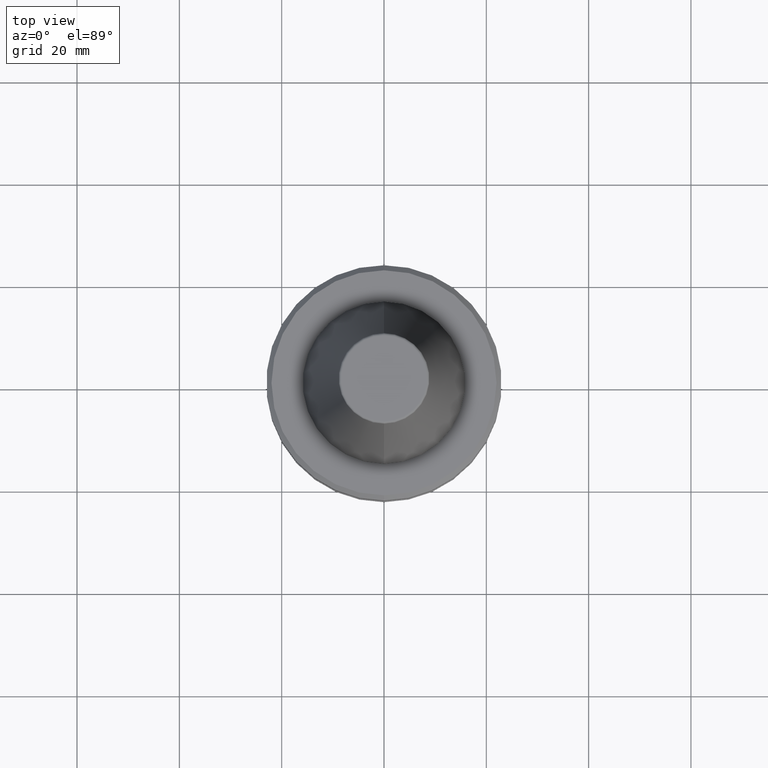
[diagram: clean part render]
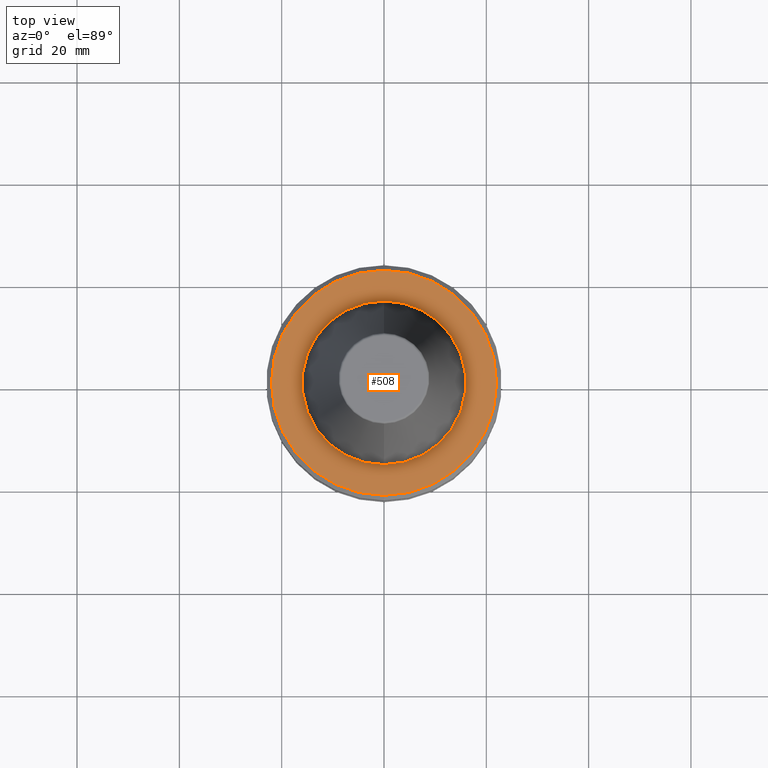
[diagram: same view with one face highlighted and labeled with its STEP entity id]
A machine part, top view. The second image highlights one B-rep face of the part: STEP entity #508.
In plain terms, the highlighted planar face has unit normal (0, -0, -1).
Its self-contained STEP definition (entity closure, byte-faithful):
#12 = ORIENTED_EDGE ( 'NONE', *, *, #1470, .T. ) ;
#22 = EDGE_CURVE ( 'NONE', #291, #528, #199, .T. ) ;
#27 = EDGE_LOOP ( 'NONE', ( #1740, #12 ) ) ;
#43 = FACE_OUTER_BOUND ( 'NONE', #27, .T. ) ;
#55 = AXIS2_PLACEMENT_3D ( 'NONE', #159, #80, #1286 ) ;
#59 = AXIS2_PLACEMENT_3D ( 'NONE', #1182, #891, #674 ) ;
#80 = DIRECTION ( 'NONE',  ( -0.0000000000000000000, 1.249865351798584200E-014, 1.000000000000000000 ) ) ;
#116 = CIRCLE ( 'NONE', #59, 22.00000000000133900 ) ;
#159 = CARTESIAN_POINT ( 'NONE',  ( 0.0000000000000000000, -1.540132287910319500E-012, -2.000000000000251400 ) ) ;
#199 = CIRCLE ( 'NONE', #55, 16.00000000000177600 ) ;
#258 = ORIENTED_EDGE ( 'NONE', *, *, #22, .F. ) ;
#287 = CARTESIAN_POINT ( 'NONE',  ( 0.0000000000000000000, 21.99999999999979700, -2.000000000000443200 ) ) ;
#291 = VERTEX_POINT ( 'NONE', #893 ) ;
#337 = AXIS2_PLACEMENT_3D ( 'NONE', #1016, #641, #1833 ) ;
#436 = VERTEX_POINT ( 'NONE', #1398 ) ;
#451 = CARTESIAN_POINT ( 'NONE',  ( 0.0000000000000000000, -16.00000000000347800, -2.000000000000162500 ) ) ;
#508 = ADVANCED_FACE ( 'NONE', ( #1587, #43 ), #1730, .F. ) ;
#528 = VERTEX_POINT ( 'NONE', #451 ) ;
#596 = ORIENTED_EDGE ( 'NONE', *, *, #1214, .F. ) ;
#641 = DIRECTION ( 'NONE',  ( 0.0000000000000000000, -1.249865351798584200E-014, -1.000000000000000000 ) ) ;
#674 = DIRECTION ( 'NONE',  ( 0.0000000000000000000, -1.000000000000000000, 1.249789413374123500E-014 ) ) ;
#849 = EDGE_CURVE ( 'NONE', #1167, #436, #1583, .T. ) ;
#884 = CARTESIAN_POINT ( 'NONE',  ( 0.0000000000000000000, -1.540132287910318500E-012, -2.000000000000168300 ) ) ;
#891 = DIRECTION ( 'NONE',  ( -0.0000000000000000000, 1.249865351798584200E-014, 1.000000000000000000 ) ) ;
#893 = CARTESIAN_POINT ( 'NONE',  ( 1.959434878636002600E-015, 16.00000000000040100, -2.000000000000562700 ) ) ;
#1000 = DIRECTION ( 'NONE',  ( -0.0000000000000000000, 1.249865351798584200E-014, 1.000000000000000000 ) ) ;
#1009 = DIRECTION ( 'NONE',  ( 0.0000000000000000000, -1.000000000000000000, 1.249789413374123500E-014 ) ) ;
#1016 = CARTESIAN_POINT ( 'NONE',  ( 0.0000000000000000000, 2.968110455490540000E-027, -2.000000000000208300 ) ) ;
#1167 = VERTEX_POINT ( 'NONE', #287 ) ;
#1182 = CARTESIAN_POINT ( 'NONE',  ( 0.0000000000000000000, -1.540132287910318500E-012, -2.000000000000168300 ) ) ;
#1214 = EDGE_CURVE ( 'NONE', #528, #291, #1249, .T. ) ;
#1249 = CIRCLE ( 'NONE', #1700, 16.00000000000177600 ) ;
#1286 = DIRECTION ( 'NONE',  ( 0.0000000000000000000, -1.000000000000000000, 1.249543003789405200E-014 ) ) ;
#1333 = DIRECTION ( 'NONE',  ( -0.0000000000000000000, 1.249865351798584200E-014, 1.000000000000000000 ) ) ;
#1398 = CARTESIAN_POINT ( 'NONE',  ( 2.755455298081709600E-015, -22.00000000000287800, -1.999999999999893400 ) ) ;
#1431 = AXIS2_PLACEMENT_3D ( 'NONE', #884, #1333, #1009 ) ;
#1470 = EDGE_CURVE ( 'NONE', #436, #1167, #116, .T. ) ;
#1583 = CIRCLE ( 'NONE', #1431, 22.00000000000133900 ) ;
#1587 = FACE_BOUND ( 'NONE', #1682, .T. ) ;
#1611 = CARTESIAN_POINT ( 'NONE',  ( 0.0000000000000000000, -1.540132287910319500E-012, -2.000000000000251400 ) ) ;
#1681 = DIRECTION ( 'NONE',  ( 0.0000000000000000000, -1.000000000000000000, 1.249543003789405200E-014 ) ) ;
#1682 = EDGE_LOOP ( 'NONE', ( #596, #258 ) ) ;
#1700 = AXIS2_PLACEMENT_3D ( 'NONE', #1611, #1000, #1681 ) ;
#1730 = PLANE ( 'NONE',  #337 ) ;
#1740 = ORIENTED_EDGE ( 'NONE', *, *, #849, .T. ) ;
#1833 = DIRECTION ( 'NONE',  ( 0.0000000000000000000, 1.000000000000000000, -1.249865351798584200E-014 ) ) ;